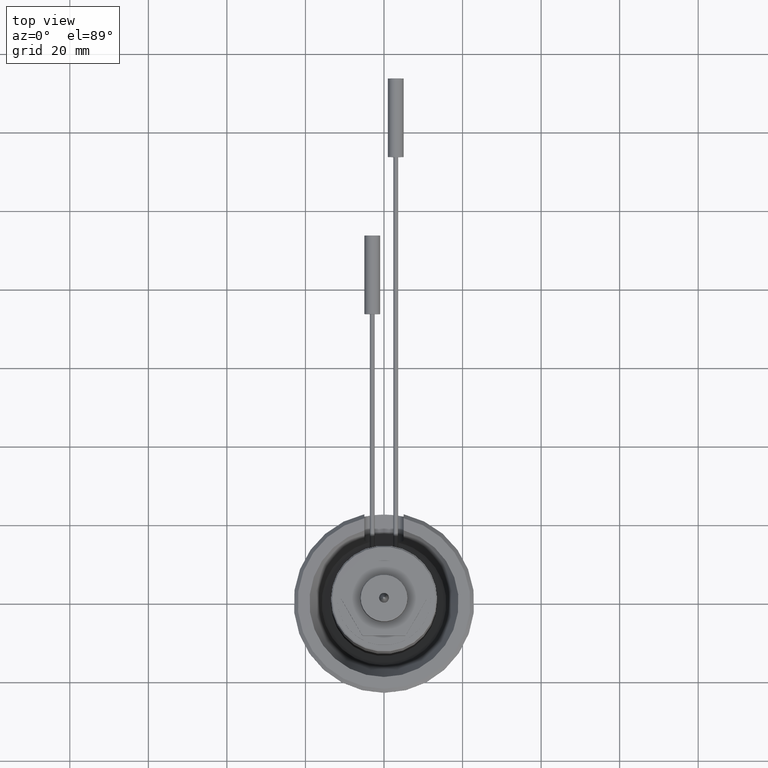
[diagram: clean part render]
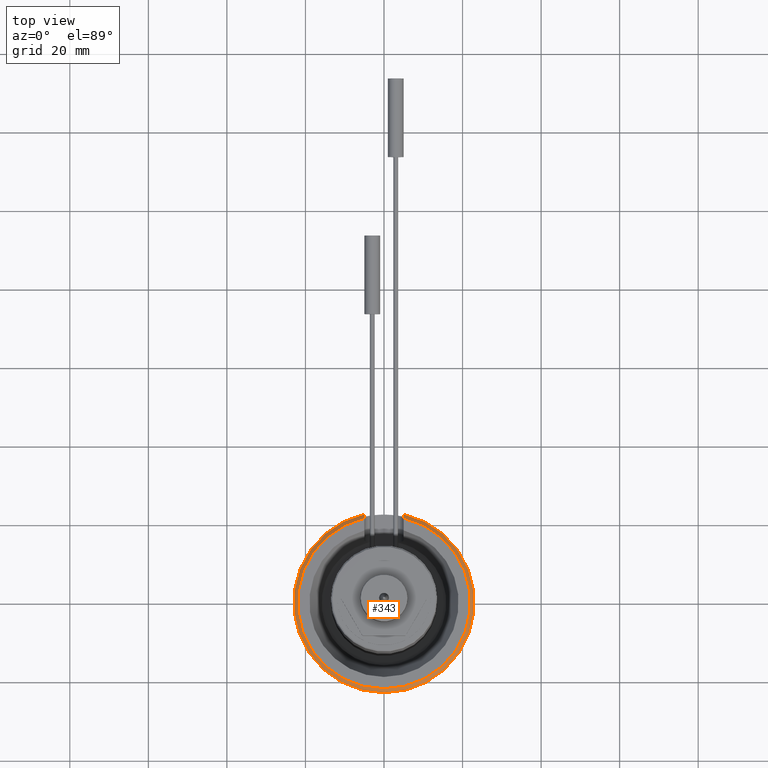
[diagram: same view with one face highlighted and labeled with its STEP entity id]
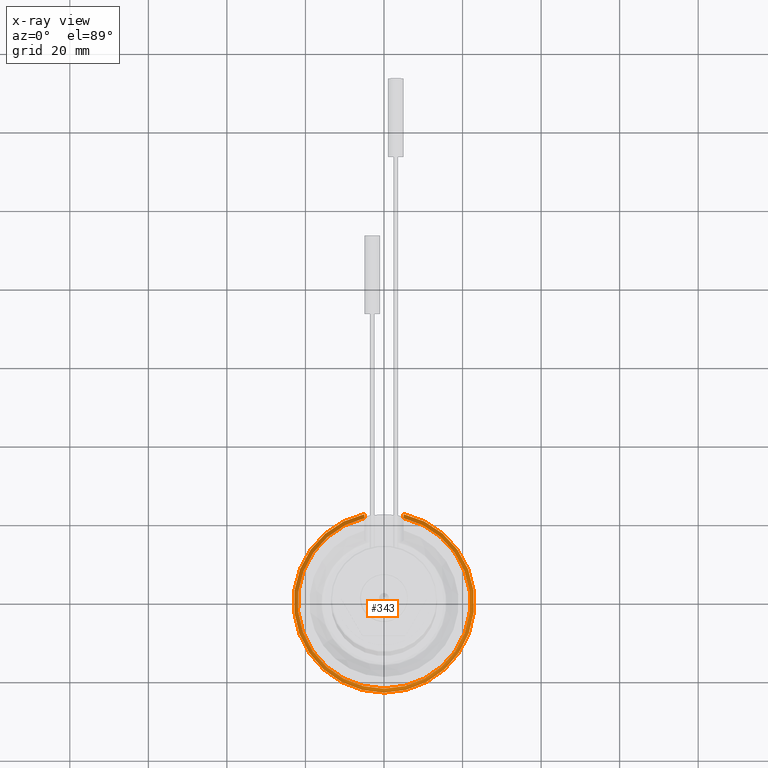
[diagram: x-ray of the same camera — body ghosted, the highlighted face saturated]
A machine part, top view. The second image highlights one B-rep face of the part: STEP entity #343.
The next image is the same camera in x-ray: the body ghosted, the highlighted face saturated — about 0% of this face is hidden behind the body in this view.
In plain terms, the highlighted conical surface has half-angle 45 deg.
Its self-contained STEP definition (entity closure, byte-faithful):
#128=CONICAL_SURFACE('',#1231,22.,45.);
#148=B_SPLINE_CURVE_WITH_KNOTS('',3,(#2021,#2022,#2023,#2024),
 .UNSPECIFIED.,.F.,.F.,(4,4),(0.,1.),.UNSPECIFIED.);
#149=B_SPLINE_CURVE_WITH_KNOTS('',3,(#2027,#2028,#2029,#2030),
 .UNSPECIFIED.,.F.,.F.,(4,4),(0.,1.),.UNSPECIFIED.);
#269=FACE_OUTER_BOUND('',#534,.T.);
#343=ADVANCED_FACE('',(#269),#128,.T.);
#534=EDGE_LOOP('',(#790,#791,#792,#793));
#790=ORIENTED_EDGE('',*,*,#1028,.F.);
#791=ORIENTED_EDGE('',*,*,#975,.F.);
#792=ORIENTED_EDGE('',*,*,#1030,.F.);
#793=ORIENTED_EDGE('',*,*,#1010,.F.);
#868=VERTEX_POINT('',#1856);
#869=VERTEX_POINT('',#1858);
#891=VERTEX_POINT('',#1962);
#892=VERTEX_POINT('',#1964);
#975=EDGE_CURVE('',#868,#869,#1068,.T.);
#1010=EDGE_CURVE('',#891,#892,#1093,.T.);
#1028=EDGE_CURVE('',#869,#891,#148,.T.);
#1030=EDGE_CURVE('',#892,#868,#149,.T.);
#1068=CIRCLE('',#1156,23.);
#1093=CIRCLE('',#1201,22.);
#1156=AXIS2_PLACEMENT_3D('',#1857,#1380,#1381);
#1201=AXIS2_PLACEMENT_3D('',#1963,#1480,#1481);
#1231=AXIS2_PLACEMENT_3D('',#2049,#1547,#1548);
#1380=DIRECTION('',(0.,0.,-1.));
#1381=DIRECTION('',(-1.,0.,0.));
#1480=DIRECTION('',(0.,0.,1.));
#1481=DIRECTION('',(-1.,0.,0.));
#1547=DIRECTION('',(0.,0.,-1.));
#1548=DIRECTION('',(-1.,0.,0.));
#1856=CARTESIAN_POINT('',(4.99999999999504,22.4499443206448,24.));
#1857=CARTESIAN_POINT('',(0.,0.,24.));
#1858=CARTESIAN_POINT('',(-4.99999999999498,22.4499443206448,24.));
#1962=CARTESIAN_POINT('',(-4.99999999999501,21.4242852856297,25.));
#1963=CARTESIAN_POINT('',(0.,0.,25.));
#1964=CARTESIAN_POINT('',(4.999999999995,21.4242852856297,25.));
#2021=CARTESIAN_POINT('',(-4.99999999999498,22.4499443206448,24.));
#2022=CARTESIAN_POINT('',(-4.99999999999498,22.1082461865377,24.3335262645727));
#2023=CARTESIAN_POINT('',(-4.99999999999501,21.7663685016499,24.6668687085708));
#2024=CARTESIAN_POINT('',(-4.99999999999501,21.4242852856297,25.));
#2027=CARTESIAN_POINT('',(4.999999999995,21.4242852856297,25.));
#2028=CARTESIAN_POINT('',(4.999999999995,21.7663685016499,24.6668687085708));
#2029=CARTESIAN_POINT('',(4.99999999999504,22.1082461865377,24.3335262645727));
#2030=CARTESIAN_POINT('',(4.99999999999504,22.4499443206448,24.));
#2049=CARTESIAN_POINT('',(0.,0.,25.));